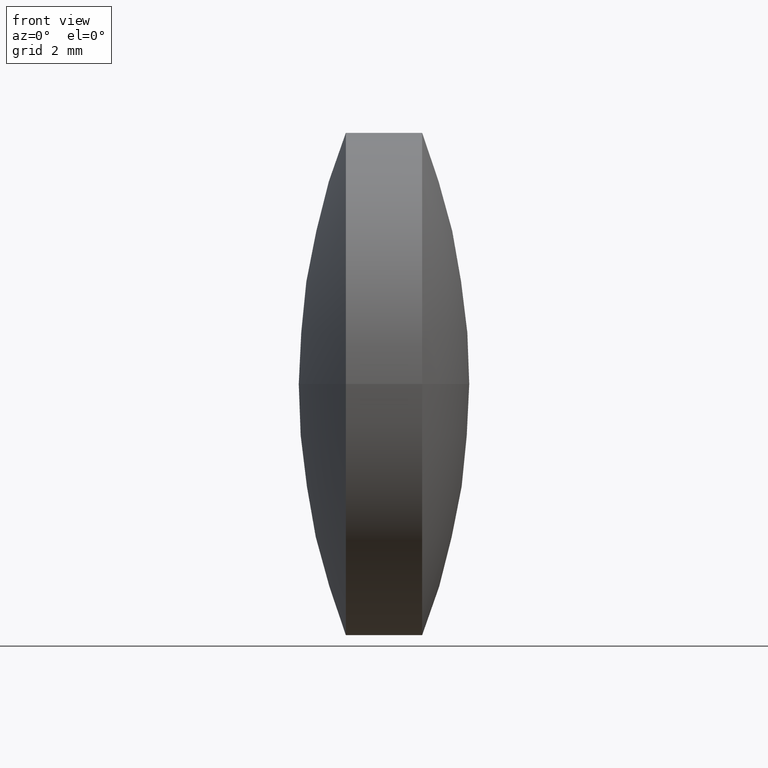
[diagram: clean part render]
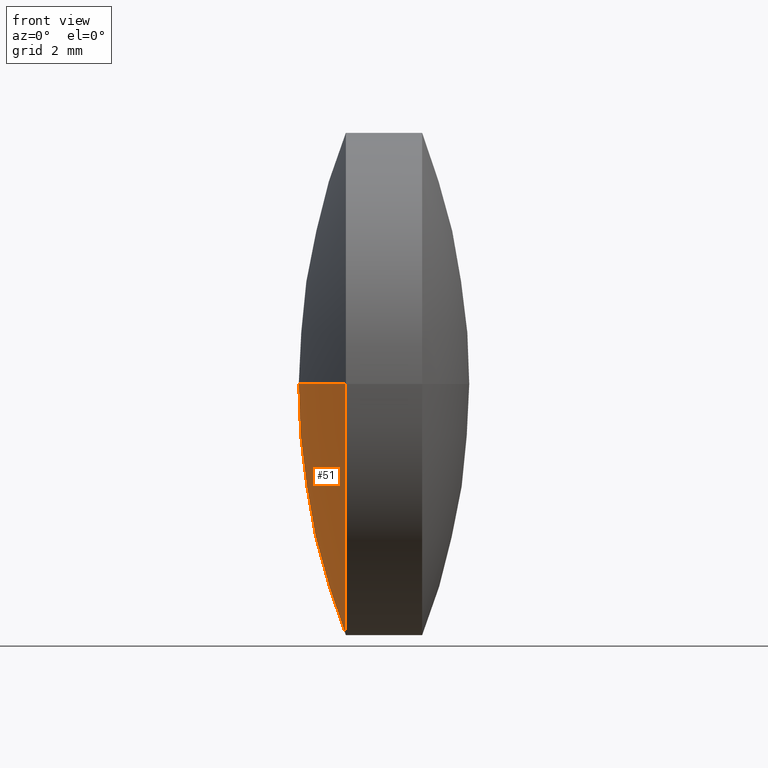
[diagram: same view with one face highlighted and labeled with its STEP entity id]
A machine part, front view. The second image highlights one B-rep face of the part: STEP entity #51.
In plain terms, the highlighted spherical surface has radius 17.9944 mm.
Its self-contained STEP definition (entity closure, byte-faithful):
#22 = CARTESIAN_POINT ( 'NONE',  ( 60.04481371545662700, 24.88233366330322100, 0.0000000000000000000 ) ) ;
#24 = CARTESIAN_POINT ( 'NONE',  ( 60.04481371545662700, 24.88233366330322100, 0.0000000000000000000 ) ) ;
#31 = ORIENTED_EDGE ( 'NONE', *, *, #145, .F. ) ;
#46 = VERTEX_POINT ( 'NONE', #224 ) ;
#51 = ADVANCED_FACE ( 'NONE', ( #234 ), #268, .T. ) ;
#65 = CARTESIAN_POINT ( 'NONE',  ( 42.05038308598922500, 24.88233366330314300, 0.0000000000000000000 ) ) ;
#70 = AXIS2_PLACEMENT_3D ( 'NONE', #24, #278, #248 ) ;
#75 = CIRCLE ( 'NONE', #173, 6.500018571481615700 ) ;
#86 = DIRECTION ( 'NONE',  ( -1.000000000000000000, -4.344046041914963800E-015, -0.0000000000000000000 ) ) ;
#89 = EDGE_CURVE ( 'NONE', #249, #254, #124, .T. ) ;
#121 = DIRECTION ( 'NONE',  ( -0.0000000000000000000, 0.0000000000000000000, 1.000000000000000000 ) ) ;
#124 = CIRCLE ( 'NONE', #226, 17.99443062946740600 ) ;
#145 = EDGE_CURVE ( 'NONE', #46, #254, #174, .T. ) ;
#154 = DIRECTION ( 'NONE',  ( 4.270076355997595100E-015, -1.000000000000000000, 0.0000000000000000000 ) ) ;
#170 = EDGE_LOOP ( 'NONE', ( #213, #247, #31 ) ) ;
#173 = AXIS2_PLACEMENT_3D ( 'NONE', #175, #86, #154 ) ;
#174 = CIRCLE ( 'NONE', #225, 17.99443062946740200 ) ;
#175 = CARTESIAN_POINT ( 'NONE',  ( 43.26538308598926400, 24.88233366330320400, 0.0000000000000000000 ) ) ;
#179 = EDGE_CURVE ( 'NONE', #46, #249, #75, .T. ) ;
#202 = DIRECTION ( 'NONE',  ( 1.000000000000000000, 0.0000000000000000000, 0.0000000000000000000 ) ) ;
#213 = ORIENTED_EDGE ( 'NONE', *, *, #179, .T. ) ;
#224 = CARTESIAN_POINT ( 'NONE',  ( 43.26538308598923500, 31.38235223478483200, 0.0000000000000000000 ) ) ;
#225 = AXIS2_PLACEMENT_3D ( 'NONE', #239, #121, #202 ) ;
#226 = AXIS2_PLACEMENT_3D ( 'NONE', #22, #302, #274 ) ;
#234 = FACE_OUTER_BOUND ( 'NONE', #170, .T. ) ;
#239 = CARTESIAN_POINT ( 'NONE',  ( 60.04481371545662700, 24.88233366330322100, 0.0000000000000000000 ) ) ;
#244 = CARTESIAN_POINT ( 'NONE',  ( 43.26538308598929200, 18.38231509182151800, -7.960226937963326300E-016 ) ) ;
#247 = ORIENTED_EDGE ( 'NONE', *, *, #89, .T. ) ;
#248 = DIRECTION ( 'NONE',  ( -4.241747600392880700E-015, 1.000000000000000000, 0.0000000000000000000 ) ) ;
#249 = VERTEX_POINT ( 'NONE', #244 ) ;
#254 = VERTEX_POINT ( 'NONE', #65 ) ;
#268 = SPHERICAL_SURFACE ( 'NONE', #70, 17.99443062946740200 ) ;
#274 = DIRECTION ( 'NONE',  ( 0.0000000000000000000, 1.000000000000000000, 1.224646799147353000E-016 ) ) ;
#278 = DIRECTION ( 'NONE',  ( -0.0000000000000000000, 0.0000000000000000000, -1.000000000000000000 ) ) ;
#302 = DIRECTION ( 'NONE',  ( -5.319922080579889100E-031, 1.224646799147353200E-016, -1.000000000000000000 ) ) ;